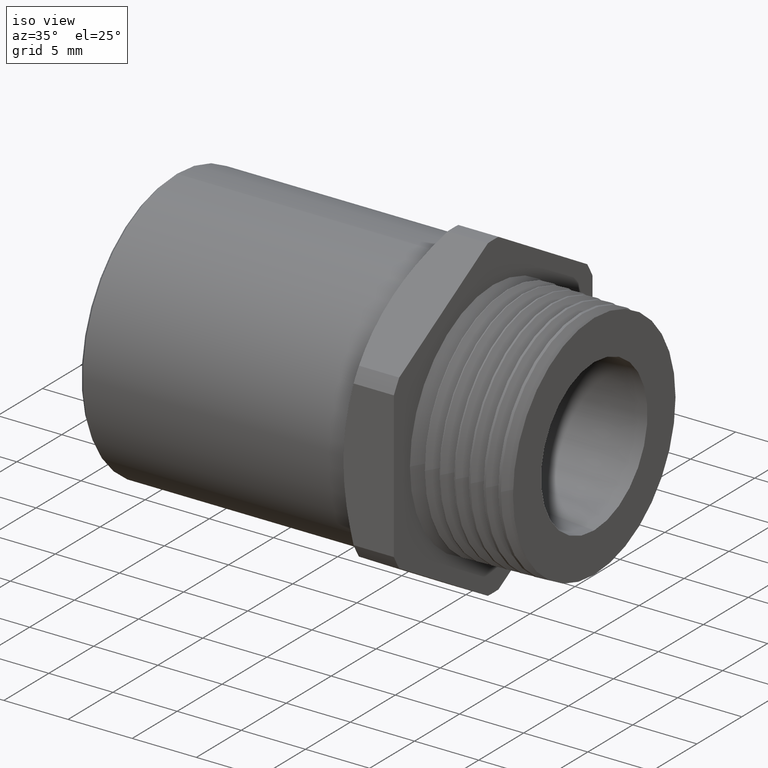
[diagram: clean part render]
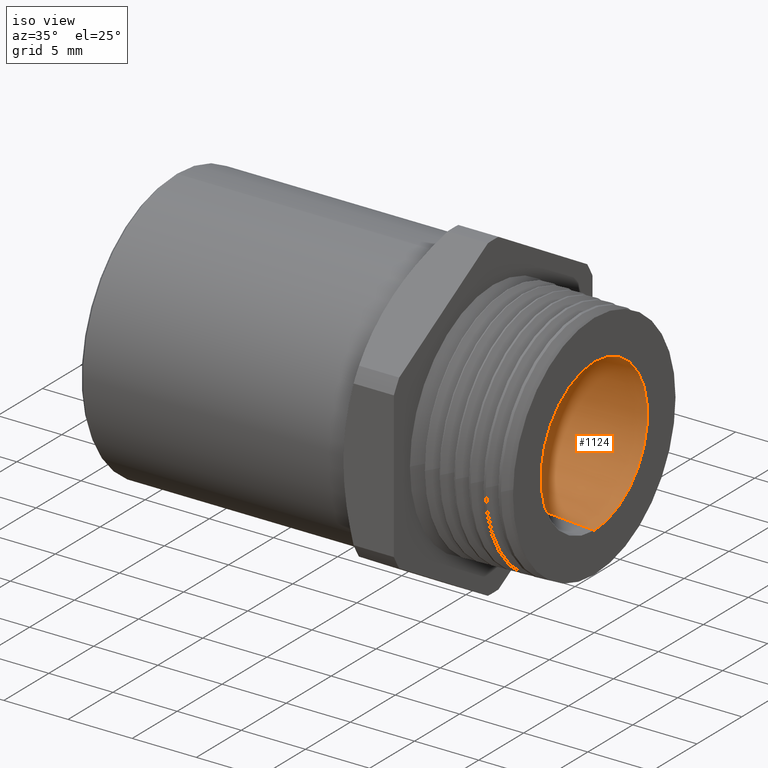
[diagram: same view with one face highlighted and labeled with its STEP entity id]
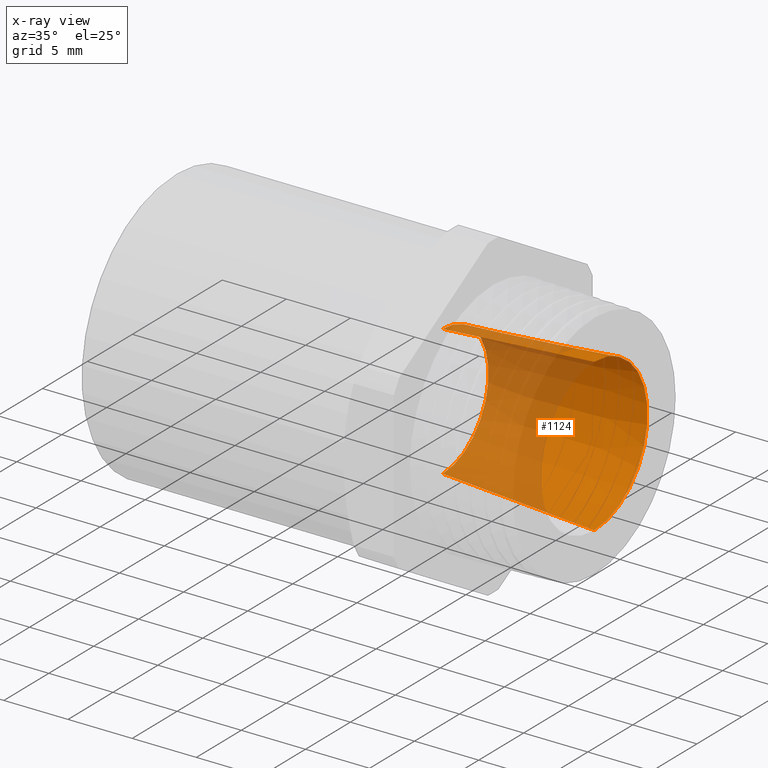
[diagram: x-ray of the same camera — body ghosted, the highlighted face saturated]
A machine part, iso view. The second image highlights one B-rep face of the part: STEP entity #1124.
The next image is the same camera in x-ray: the body ghosted, the highlighted face saturated — about 49% of this face is hidden behind the body in this view.
In plain terms, the highlighted conical surface has half-angle 4 deg.
Its self-contained STEP definition (entity closure, byte-faithful):
#537 = CARTESIAN_POINT ( 'NONE',  ( 1.365923996832131600E-016, 0.0000000000000000000, -0.2332659675537325500 ) ) ;
#538 = DIRECTION ( 'NONE',  ( 0.9975640502598242000, 0.0000000000000000000, -0.06975647374412564900 ) ) ;
#539 = VECTOR ( 'NONE', #538, 39.37007874015748100 ) ;
#540 = CARTESIAN_POINT ( 'NONE',  ( -0.4649999999999998000, 0.0000000000000000000, -0.2007500000000000400 ) ) ;
#541 = LINE ( 'NONE', #540, #539 ) ;
#893 = EDGE_CURVE ( 'NONE', #1409, #895, #541, .T. ) ;
#895 = VERTEX_POINT ( 'NONE', #537 ) ;
#1114 = ORIENTED_EDGE ( 'NONE', *, *, #1413, .F. ) ;
#1116 = EDGE_LOOP ( 'NONE', ( #1114, #1159, #1157, #1158 ) ) ;
#1123 = EDGE_CURVE ( 'NONE', #1408, #895, #1608, .T. ) ;
#1124 = ADVANCED_FACE ( 'NONE', ( #1665 ), #1664, .F. ) ;
#1157 = ORIENTED_EDGE ( 'NONE', *, *, #893, .T. ) ;
#1158 = ORIENTED_EDGE ( 'NONE', *, *, #1123, .F. ) ;
#1159 = ORIENTED_EDGE ( 'NONE', *, *, #1162, .T. ) ;
#1162 = EDGE_CURVE ( 'NONE', #1395, #1409, #1730, .T. ) ;
#1395 = VERTEX_POINT ( 'NONE', #2043 ) ;
#1408 = VERTEX_POINT ( 'NONE', #2025 ) ;
#1409 = VERTEX_POINT ( 'NONE', #2024 ) ;
#1413 = EDGE_CURVE ( 'NONE', #1395, #1408, #2068, .T. ) ;
#1605 = DIRECTION ( 'NONE',  ( -1.000000000000000000, 0.0000000000000000000, 0.0000000000000000000 ) ) ;
#1606 = CARTESIAN_POINT ( 'NONE',  ( 1.365923996832131600E-016, 0.0000000000000000000, 0.0000000000000000000 ) ) ;
#1607 = AXIS2_PLACEMENT_3D ( 'NONE', #1606, #1605, #1666 ) ;
#1608 = CIRCLE ( 'NONE', #1607, 0.2332659675537325500 ) ;
#1660 = DIRECTION ( 'NONE',  ( 0.0000000000000000000, 0.0000000000000000000, -1.000000000000000000 ) ) ;
#1661 = DIRECTION ( 'NONE',  ( 1.000000000000000000, 0.0000000000000000000, 0.0000000000000000000 ) ) ;
#1662 = CARTESIAN_POINT ( 'NONE',  ( -0.4649999999999998000, 0.0000000000000000000, 0.0000000000000000000 ) ) ;
#1663 = AXIS2_PLACEMENT_3D ( 'NONE', #1662, #1661, #1660 ) ;
#1664 = CONICAL_SURFACE ( 'NONE', #1663, 0.2007500000000000400, 0.06981317007977352900 ) ;
#1665 = FACE_OUTER_BOUND ( 'NONE', #1116, .T. ) ;
#1666 = DIRECTION ( 'NONE',  ( 0.0000000000000000000, 0.0000000000000000000, 1.000000000000000000 ) ) ;
#1726 = DIRECTION ( 'NONE',  ( 0.0000000000000000000, 0.0000000000000000000, 1.000000000000000000 ) ) ;
#1727 = DIRECTION ( 'NONE',  ( -1.000000000000000000, 0.0000000000000000000, 0.0000000000000000000 ) ) ;
#1728 = CARTESIAN_POINT ( 'NONE',  ( -0.4649999999999998000, 0.0000000000000000000, 0.0000000000000000000 ) ) ;
#1729 = AXIS2_PLACEMENT_3D ( 'NONE', #1728, #1727, #1726 ) ;
#1730 = CIRCLE ( 'NONE', #1729, 0.2007500000000000400 ) ;
#2024 = CARTESIAN_POINT ( 'NONE',  ( -0.4649999999999998000, 0.0000000000000000000, -0.2007500000000000400 ) ) ;
#2025 = CARTESIAN_POINT ( 'NONE',  ( 1.365923996832131600E-016, 2.856684205146889000E-017, 0.2332659675537325500 ) ) ;
#2043 = CARTESIAN_POINT ( 'NONE',  ( -0.4649999999999998000, 2.657581327217600500E-017, 0.2007500000000000400 ) ) ;
#2065 = DIRECTION ( 'NONE',  ( 0.9975640502598242000, 8.542704229054986300E-018, 0.06975647374412564900 ) ) ;
#2066 = VECTOR ( 'NONE', #2065, 39.37007874015748100 ) ;
#2067 = CARTESIAN_POINT ( 'NONE',  ( -0.4649999999999998000, 2.458478449288312300E-017, 0.2007500000000000400 ) ) ;
#2068 = LINE ( 'NONE', #2067, #2066 ) ;